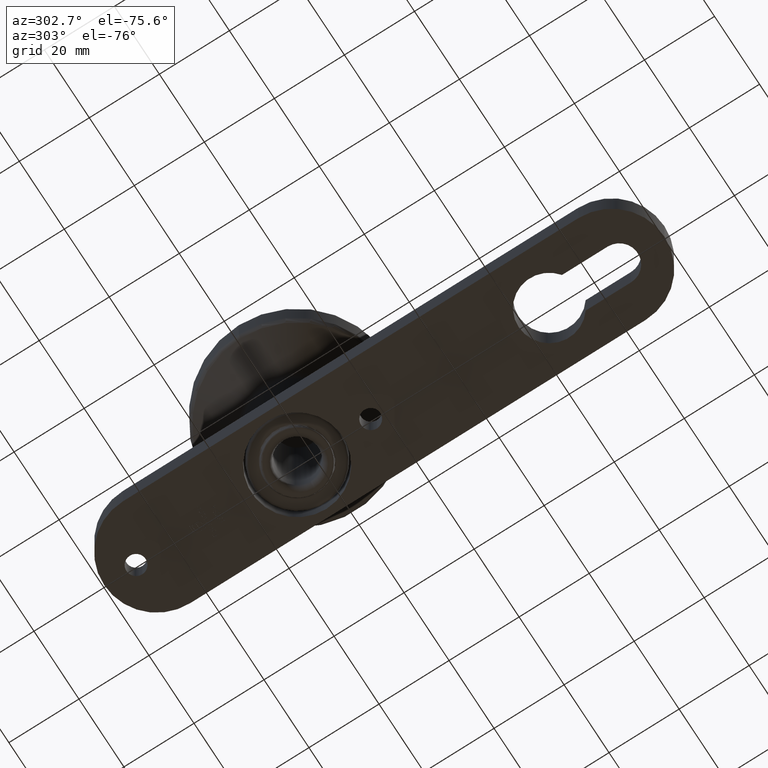
[diagram: clean part render]
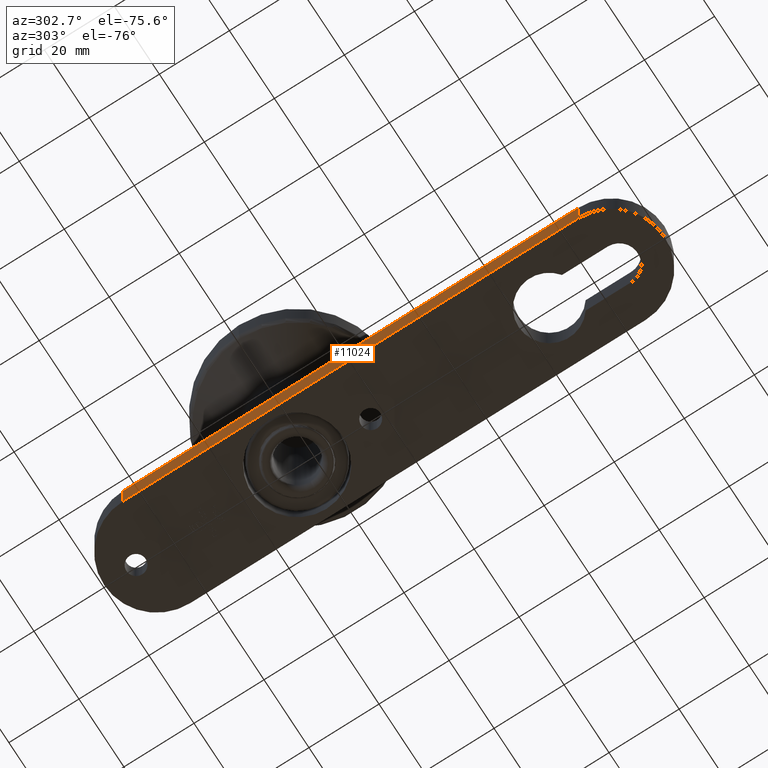
[diagram: same view with one face highlighted and labeled with its STEP entity id]
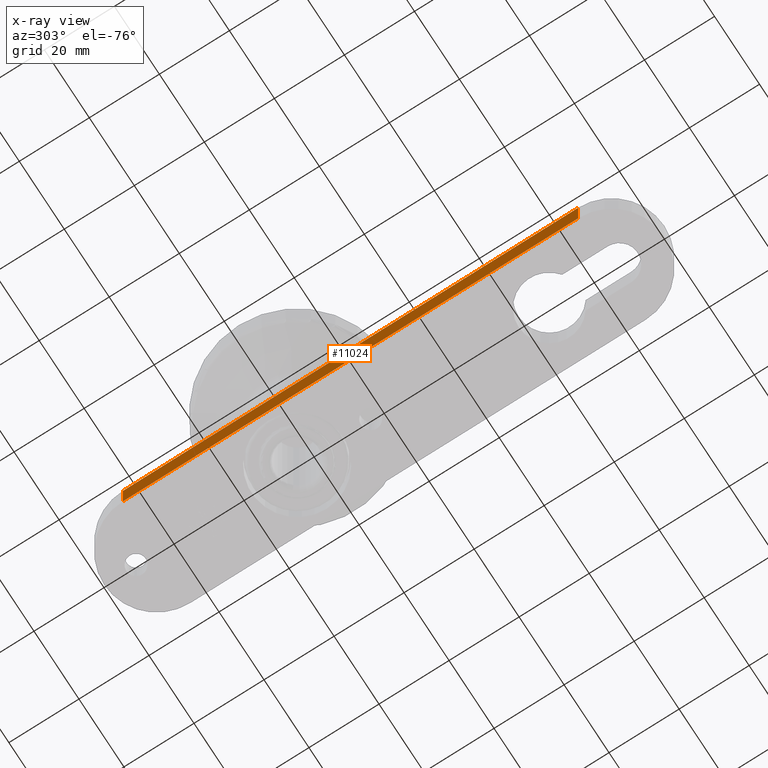
[diagram: x-ray of the same camera — body ghosted, the highlighted face saturated]
A machine part, auxiliary view. The second image highlights one B-rep face of the part: STEP entity #11024.
The next image is the same camera in x-ray: the body ghosted, the highlighted face saturated — about 0% of this face is hidden behind the body in this view.
In plain terms, the highlighted planar face has unit normal (1, 0, 0).
Its self-contained STEP definition (entity closure, byte-faithful):
#54 = DIRECTION ( 'NONE',  ( 0.000000000000000000, -0.000000000000000000, 1.000000000000000000 ) ) ;
#342 = VERTEX_POINT ( 'NONE', #3277 ) ;
#438 = CARTESIAN_POINT ( 'NONE',  ( -15.00000000000000711, 79.99999999999997158, 5.000000000000000000 ) ) ;
#521 = DIRECTION ( 'NONE',  ( 1.084202172485504434E-16, -1.000000000000000000, 0.000000000000000000 ) ) ;
#1009 = EDGE_CURVE ( 'NONE', #10331, #8590, #2698, .T. ) ;
#1046 = VECTOR ( 'NONE', #9177, 1000.000000000000000 ) ;
#1661 = EDGE_CURVE ( 'NONE', #342, #10331, #8906, .T. ) ;
#2588 = DIRECTION ( 'NONE',  ( -1.084202172485504434E-16, 1.000000000000000000, 0.000000000000000000 ) ) ;
#2698 = LINE ( 'NONE', #10452, #8316 ) ;
#2817 = DIRECTION ( 'NONE',  ( 0.000000000000000000, 0.000000000000000000, -1.000000000000000000 ) ) ;
#2829 = LINE ( 'NONE', #438, #3710 ) ;
#3277 = CARTESIAN_POINT ( 'NONE',  ( -15.00000000000000533, 64.99999999999997158, -5.000000000000000000 ) ) ;
#3372 = CARTESIAN_POINT ( 'NONE',  ( -15.00000000000000533, 64.99999999999997158, 5.000000000000000000 ) ) ;
#3710 = VECTOR ( 'NONE', #521, 1000.000000000000000 ) ;
#4779 = CARTESIAN_POINT ( 'NONE',  ( -15.00000000000000533, 64.99999999999997158, 5.000000000000000000 ) ) ;
#5938 = AXIS2_PLACEMENT_3D ( 'NONE', #8253, #9226, #2588 ) ;
#7304 = PLANE ( 'NONE',  #5938 ) ;
#7370 = ORIENTED_EDGE ( 'NONE', *, *, #8012, .T. ) ;
#7739 = ORIENTED_EDGE ( 'NONE', *, *, #10750, .F. ) ;
#8012 = EDGE_CURVE ( 'NONE', #9355, #342, #11176, .T. ) ;
#8253 = CARTESIAN_POINT ( 'NONE',  ( -15.00000000000000711, 79.99999999999997158, 5.000000000000000000 ) ) ;
#8316 = VECTOR ( 'NONE', #54, 1000.000000000000000 ) ;
#8590 = VERTEX_POINT ( 'NONE', #11173 ) ;
#8906 = LINE ( 'NONE', #11106, #1046 ) ;
#9177 = DIRECTION ( 'NONE',  ( 1.084202172485504434E-16, -1.000000000000000000, 0.000000000000000000 ) ) ;
#9226 = DIRECTION ( 'NONE',  ( 1.000000000000000000, 1.084202172485504434E-16, -0.000000000000000000 ) ) ;
#9355 = VERTEX_POINT ( 'NONE', #3372 ) ;
#10133 = VECTOR ( 'NONE', #2817, 1000.000000000000000 ) ;
#10331 = VERTEX_POINT ( 'NONE', #11672 ) ;
#10452 = CARTESIAN_POINT ( 'NONE',  ( -14.99999999999999112, -65.00000000000004263, 5.000000000000000000 ) ) ;
#10509 = ORIENTED_EDGE ( 'NONE', *, *, #1009, .T. ) ;
#10701 = ORIENTED_EDGE ( 'NONE', *, *, #1661, .T. ) ;
#10750 = EDGE_CURVE ( 'NONE', #9355, #8590, #2829, .T. ) ;
#10994 = EDGE_LOOP ( 'NONE', ( #10701, #10509, #7739, #7370 ) ) ;
#10998 = FACE_OUTER_BOUND ( 'NONE', #10994, .T. ) ;
#11024 = ADVANCED_FACE ( 'NONE', ( #10998 ), #7304, .F. ) ;
#11106 = CARTESIAN_POINT ( 'NONE',  ( -15.00000000000000711, 79.99999999999997158, -5.000000000000000000 ) ) ;
#11173 = CARTESIAN_POINT ( 'NONE',  ( -14.99999999999999112, -65.00000000000004263, 5.000000000000000000 ) ) ;
#11176 = LINE ( 'NONE', #4779, #10133 ) ;
#11672 = CARTESIAN_POINT ( 'NONE',  ( -14.99999999999999112, -65.00000000000004263, -5.000000000000000000 ) ) ;